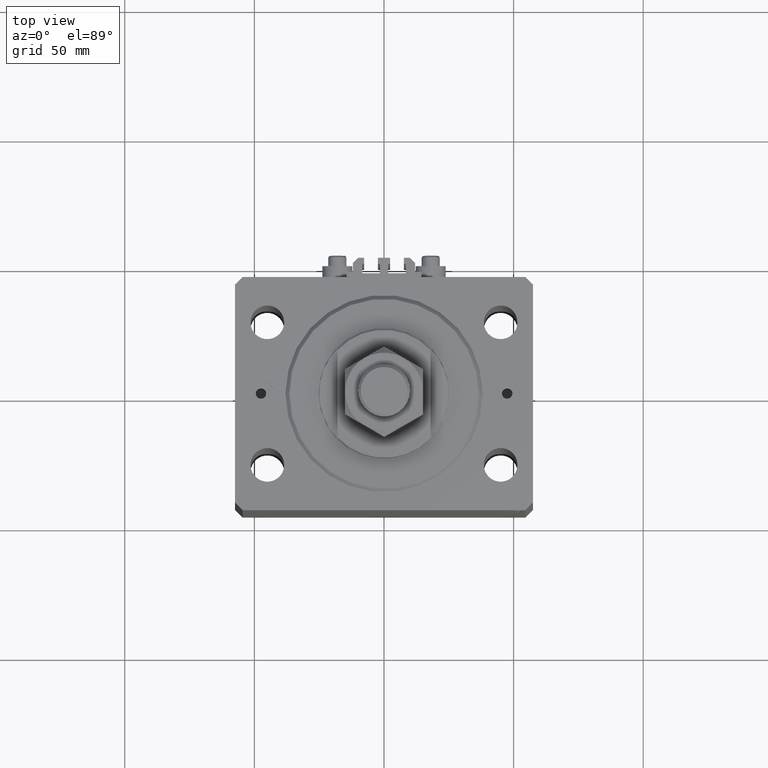
[diagram: clean part render]
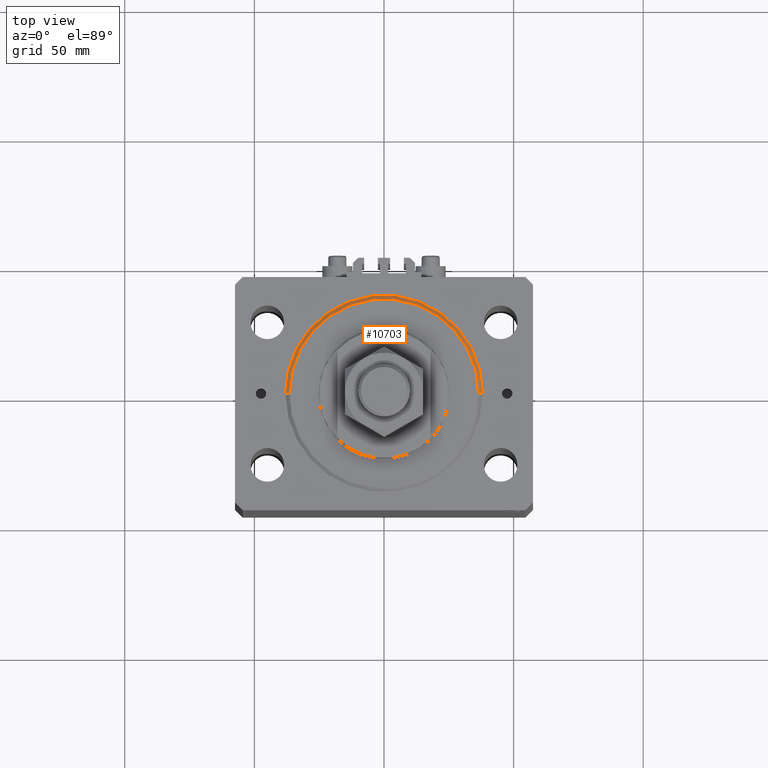
[diagram: same view with one face highlighted and labeled with its STEP entity id]
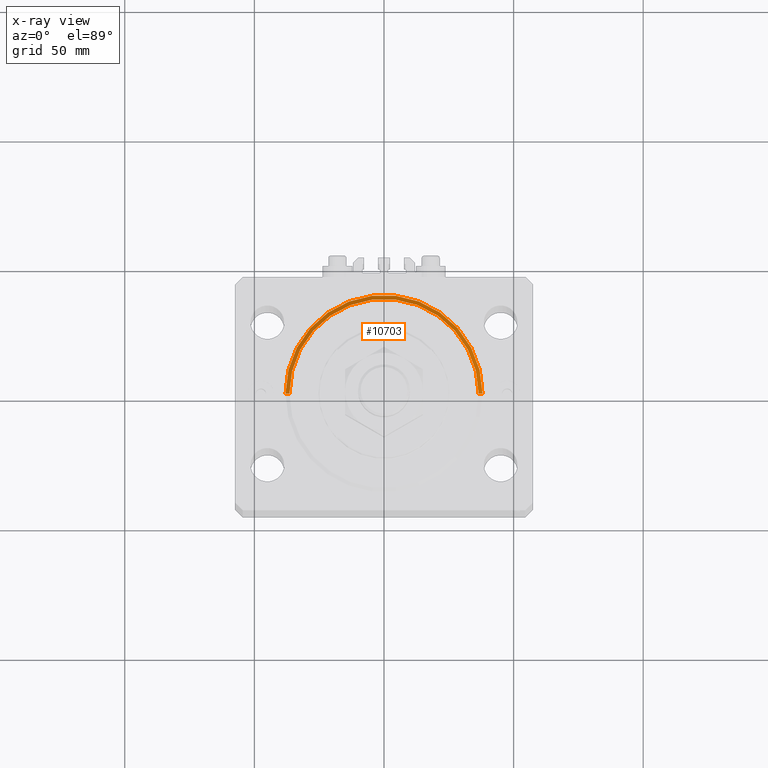
[diagram: x-ray of the same camera — body ghosted, the highlighted face saturated]
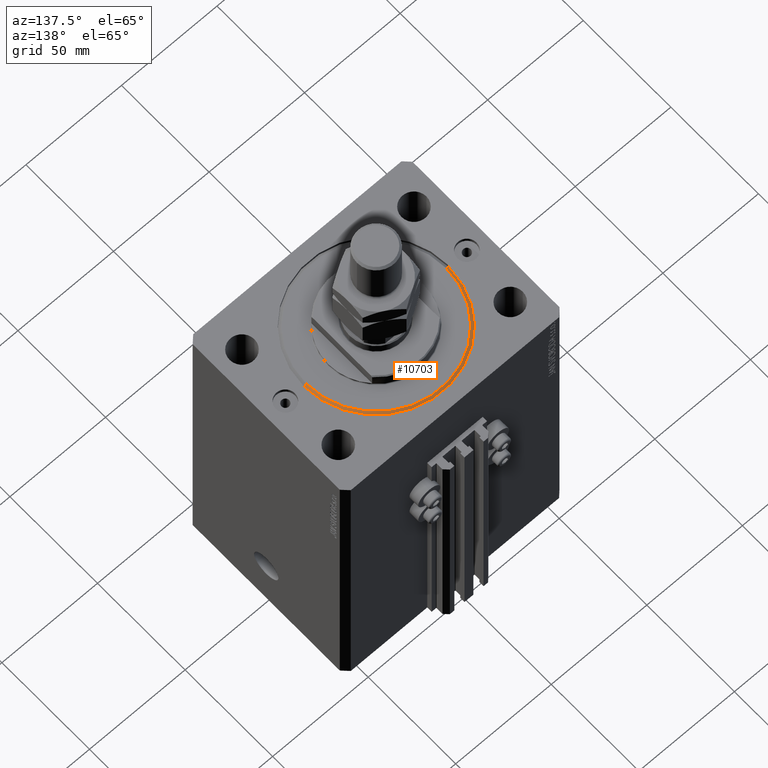
[diagram: same view with one face highlighted and labeled with its STEP entity id]
A machine part, top view. The second image highlights one B-rep face of the part: STEP entity #10703.
The next image is the same camera in x-ray: the body ghosted, the highlighted face saturated — about 0% of this face is hidden behind the body in this view.
A second angle (auxiliary view) of the same face is appended — the face is thin or edge-on in the first view.
In plain terms, the highlighted conical surface has half-angle 45 deg.
Its self-contained STEP definition (entity closure, byte-faithful):
#1366 = VERTEX_POINT ( 'NONE', #12358 ) ;
#6481 = CIRCLE ( 'NONE', #12782, 36.50000000000000000 ) ;
#6587 = CARTESIAN_POINT ( 'NONE',  ( 0.000000000000000000, 0.000000000000000000, 1.499999999999987566 ) ) ;
#7350 = EDGE_LOOP ( 'NONE', ( #22719, #21934, #46724, #33998 ) ) ;
#7544 = EDGE_CURVE ( 'NONE', #1366, #12853, #19252, .T. ) ;
#10703 = ADVANCED_FACE ( 'NONE', ( #37873 ), #47378, .T. ) ;
#10984 = VERTEX_POINT ( 'NONE', #30636 ) ;
#11458 = CARTESIAN_POINT ( 'NONE',  ( 0.000000000000000000, 0.000000000000000000, 1.499999999999987566 ) ) ;
#11893 = AXIS2_PLACEMENT_3D ( 'NONE', #11458, #33929, #38122 ) ;
#12358 = CARTESIAN_POINT ( 'NONE',  ( 36.50000000000000000, 0.000000000000000000, 0.000000000000000000 ) ) ;
#12782 = AXIS2_PLACEMENT_3D ( 'NONE', #26823, #39174, #31509 ) ;
#12853 = VERTEX_POINT ( 'NONE', #43670 ) ;
#17946 = DIRECTION ( 'NONE',  ( -0.000000000000000000, -0.000000000000000000, 1.000000000000000000 ) ) ;
#19252 = LINE ( 'NONE', #30601, #28346 ) ;
#20467 = CARTESIAN_POINT ( 'NONE',  ( -38.00000000000000000, 4.653657836759941152E-15, 1.499999999999987566 ) ) ;
#21934 = ORIENTED_EDGE ( 'NONE', *, *, #46478, .T. ) ;
#22719 = ORIENTED_EDGE ( 'NONE', *, *, #31775, .F. ) ;
#26823 = CARTESIAN_POINT ( 'NONE',  ( 0.000000000000000000, 0.000000000000000000, 0.000000000000000000 ) ) ;
#26902 = DIRECTION ( 'NONE',  ( 0.7071067811865507924, 0.000000000000000000, 0.7071067811865441310 ) ) ;
#27003 = EDGE_CURVE ( 'NONE', #12853, #10984, #35544, .T. ) ;
#28346 = VECTOR ( 'NONE', #26902, 1000.000000000000114 ) ;
#30601 = CARTESIAN_POINT ( 'NONE',  ( 38.00000000000000000, 0.000000000000000000, 1.499999999999987566 ) ) ;
#30636 = CARTESIAN_POINT ( 'NONE',  ( -38.00000000000000000, 0.000000000000000000, 1.499999999999987566 ) ) ;
#31509 = DIRECTION ( 'NONE',  ( 1.000000000000000000, 0.000000000000000000, 0.000000000000000000 ) ) ;
#31563 = VERTEX_POINT ( 'NONE', #35330 ) ;
#31775 = EDGE_CURVE ( 'NONE', #31563, #1366, #6481, .T. ) ;
#33929 = DIRECTION ( 'NONE',  ( -0.000000000000000000, -0.000000000000000000, 1.000000000000000000 ) ) ;
#33998 = ORIENTED_EDGE ( 'NONE', *, *, #7544, .F. ) ;
#35330 = CARTESIAN_POINT ( 'NONE',  ( -36.50000000000000000, 4.561809326823889791E-15, 0.000000000000000000 ) ) ;
#35544 = CIRCLE ( 'NONE', #46632, 38.00000000000000000 ) ;
#36214 = DIRECTION ( 'NONE',  ( 1.000000000000000000, 0.000000000000000000, 0.000000000000000000 ) ) ;
#37873 = FACE_OUTER_BOUND ( 'NONE', #7350, .T. ) ;
#38122 = DIRECTION ( 'NONE',  ( 1.000000000000000000, 0.000000000000000000, 0.000000000000000000 ) ) ;
#39174 = DIRECTION ( 'NONE',  ( -0.000000000000000000, -0.000000000000000000, -1.000000000000000000 ) ) ;
#43664 = DIRECTION ( 'NONE',  ( -0.7071067811865507924, 8.659560562354972301E-17, 0.7071067811865441310 ) ) ;
#43670 = CARTESIAN_POINT ( 'NONE',  ( 38.00000000000000000, 4.653657836759941941E-15, 1.499999999999987566 ) ) ;
#43922 = LINE ( 'NONE', #20467, #47044 ) ;
#46478 = EDGE_CURVE ( 'NONE', #31563, #10984, #43922, .T. ) ;
#46632 = AXIS2_PLACEMENT_3D ( 'NONE', #6587, #17946, #36214 ) ;
#46724 = ORIENTED_EDGE ( 'NONE', *, *, #27003, .F. ) ;
#47044 = VECTOR ( 'NONE', #43664, 1000.000000000000114 ) ;
#47378 = CONICAL_SURFACE ( 'NONE', #11893, 38.00000000000000000, 0.7853981633974529419 ) ;